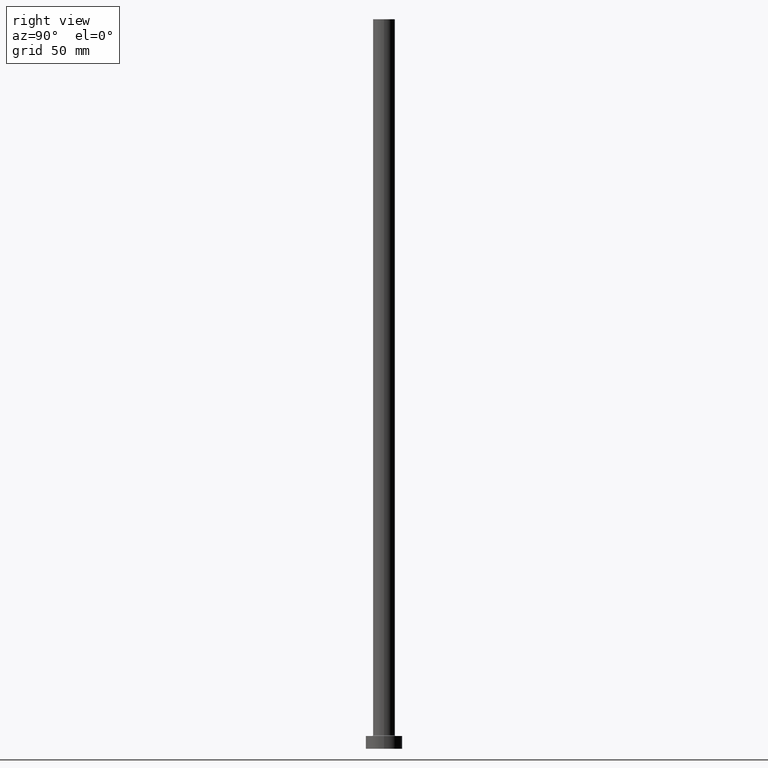
[diagram: clean part render]
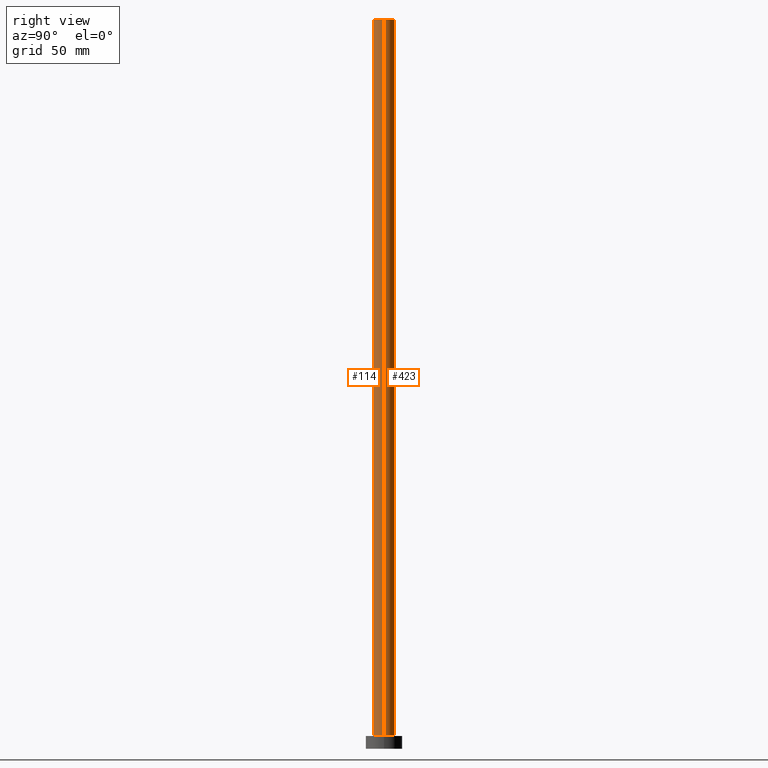
[diagram: same view with one multi-face feature highlighted, each face labeled with its STEP entity id]
A machine part, right view. The highlighted faces form ONE feature: a constant-radius fillet chain: 2 tangent blend faces with common blend radius 6 mm. The faces share edges in the B-rep.
Their STEP definitions:
[1] entity #423 (Cylinder):
#41 = DIRECTION ( 'NONE',  ( -0.000000000000000000, -0.000000000000000000, -1.000000000000000000 ) ) ;
#47 = CARTESIAN_POINT ( 'NONE',  ( 6.000000000000000888, 7.347880794884120722E-16, 400.0000000000000000 ) ) ;
#48 = CIRCLE ( 'NONE', #390, 6.000000000000000888 ) ;
#54 = DIRECTION ( 'NONE',  ( -0.000000000000000000, -0.000000000000000000, -1.000000000000000000 ) ) ;
#63 = EDGE_CURVE ( 'NONE', #443, #298, #238, .T. ) ;
#94 = ORIENTED_EDGE ( 'NONE', *, *, #202, .T. ) ;
#115 = DIRECTION ( 'NONE',  ( 0.000000000000000000, 0.000000000000000000, 1.000000000000000000 ) ) ;
#122 = CARTESIAN_POINT ( 'NONE',  ( -6.000000000000000888, 0.000000000000000000, 7.500000000000007105 ) ) ;
#150 = AXIS2_PLACEMENT_3D ( 'NONE', #262, #393, #256 ) ;
#157 = CARTESIAN_POINT ( 'NONE',  ( 6.000000000000000888, 7.347880794884120722E-16, 400.0000000000000000 ) ) ;
#169 = ORIENTED_EDGE ( 'NONE', *, *, #214, .F. ) ;
#190 = VECTOR ( 'NONE', #41, 1000.000000000000000 ) ;
#197 = VECTOR ( 'NONE', #54, 1000.000000000000000 ) ;
#202 = EDGE_CURVE ( 'NONE', #298, #379, #418, .T. ) ;
#214 = EDGE_CURVE ( 'NONE', #443, #413, #48, .T. ) ;
#222 = DIRECTION ( 'NONE',  ( 1.000000000000000000, 0.000000000000000000, 0.000000000000000000 ) ) ;
#230 = EDGE_CURVE ( 'NONE', #413, #379, #370, .T. ) ;
#238 = LINE ( 'NONE', #47, #197 ) ;
#256 = DIRECTION ( 'NONE',  ( 1.000000000000000000, 0.000000000000000000, 0.000000000000000000 ) ) ;
#262 = CARTESIAN_POINT ( 'NONE',  ( 0.000000000000000000, 0.000000000000000000, 7.500000000000007105 ) ) ;
#268 = DIRECTION ( 'NONE',  ( -0.000000000000000000, -0.000000000000000000, -1.000000000000000000 ) ) ;
#298 = VERTEX_POINT ( 'NONE', #441 ) ;
#300 = DIRECTION ( 'NONE',  ( -1.000000000000000000, 0.000000000000000000, 0.000000000000000000 ) ) ;
#305 = CARTESIAN_POINT ( 'NONE',  ( 0.000000000000000000, 0.000000000000000000, 400.0000000000000000 ) ) ;
#340 = ORIENTED_EDGE ( 'NONE', *, *, #63, .T. ) ;
#361 = CARTESIAN_POINT ( 'NONE',  ( -6.000000000000000888, 0.000000000000000000, 400.0000000000000000 ) ) ;
#370 = LINE ( 'NONE', #361, #190 ) ;
#379 = VERTEX_POINT ( 'NONE', #122 ) ;
#390 = AXIS2_PLACEMENT_3D ( 'NONE', #432, #115, #222 ) ;
#393 = DIRECTION ( 'NONE',  ( 0.000000000000000000, 0.000000000000000000, 1.000000000000000000 ) ) ;
#394 = ORIENTED_EDGE ( 'NONE', *, *, #230, .F. ) ;
#411 = EDGE_LOOP ( 'NONE', ( #169, #340, #94, #394 ) ) ;
#412 = CARTESIAN_POINT ( 'NONE',  ( -6.000000000000000888, 0.000000000000000000, 400.0000000000000000 ) ) ;
#413 = VERTEX_POINT ( 'NONE', #412 ) ;
#418 = CIRCLE ( 'NONE', #150, 6.000000000000000888 ) ;
#423 = ADVANCED_FACE ( 'NONE', ( #446 ), #444, .T. ) ;
#432 = CARTESIAN_POINT ( 'NONE',  ( 0.000000000000000000, 0.000000000000000000, 400.0000000000000000 ) ) ;
#441 = CARTESIAN_POINT ( 'NONE',  ( 6.000000000000000888, 7.347880794884120722E-16, 7.500000000000007105 ) ) ;
#443 = VERTEX_POINT ( 'NONE', #157 ) ;
#444 = CYLINDRICAL_SURFACE ( 'NONE', #458, 6.000000000000000888 ) ;
#446 = FACE_OUTER_BOUND ( 'NONE', #411, .T. ) ;
#458 = AXIS2_PLACEMENT_3D ( 'NONE', #305, #268, #300 ) ;
[2] entity #114 (Cylinder):
#1 = DIRECTION ( 'NONE',  ( 0.000000000000000000, 0.000000000000000000, 1.000000000000000000 ) ) ;
#2 = DIRECTION ( 'NONE',  ( -0.000000000000000000, -0.000000000000000000, -1.000000000000000000 ) ) ;
#22 = CYLINDRICAL_SURFACE ( 'NONE', #284, 6.000000000000000888 ) ;
#35 = ORIENTED_EDGE ( 'NONE', *, *, #153, .F. ) ;
#41 = DIRECTION ( 'NONE',  ( -0.000000000000000000, -0.000000000000000000, -1.000000000000000000 ) ) ;
#47 = CARTESIAN_POINT ( 'NONE',  ( 6.000000000000000888, 7.347880794884120722E-16, 400.0000000000000000 ) ) ;
#54 = DIRECTION ( 'NONE',  ( -0.000000000000000000, -0.000000000000000000, -1.000000000000000000 ) ) ;
#55 = ORIENTED_EDGE ( 'NONE', *, *, #63, .F. ) ;
#63 = EDGE_CURVE ( 'NONE', #443, #298, #238, .T. ) ;
#111 = DIRECTION ( 'NONE',  ( 1.000000000000000000, 0.000000000000000000, 0.000000000000000000 ) ) ;
#114 = ADVANCED_FACE ( 'NONE', ( #165 ), #22, .T. ) ;
#116 = CARTESIAN_POINT ( 'NONE',  ( 0.000000000000000000, 0.000000000000000000, 7.500000000000007105 ) ) ;
#122 = CARTESIAN_POINT ( 'NONE',  ( -6.000000000000000888, 0.000000000000000000, 7.500000000000007105 ) ) ;
#125 = AXIS2_PLACEMENT_3D ( 'NONE', #116, #367, #399 ) ;
#153 = EDGE_CURVE ( 'NONE', #413, #443, #219, .T. ) ;
#157 = CARTESIAN_POINT ( 'NONE',  ( 6.000000000000000888, 7.347880794884120722E-16, 400.0000000000000000 ) ) ;
#165 = FACE_OUTER_BOUND ( 'NONE', #453, .T. ) ;
#178 = AXIS2_PLACEMENT_3D ( 'NONE', #426, #1, #111 ) ;
#190 = VECTOR ( 'NONE', #41, 1000.000000000000000 ) ;
#197 = VECTOR ( 'NONE', #54, 1000.000000000000000 ) ;
#203 = CARTESIAN_POINT ( 'NONE',  ( 0.000000000000000000, 0.000000000000000000, 400.0000000000000000 ) ) ;
#208 = EDGE_CURVE ( 'NONE', #379, #298, #273, .T. ) ;
#219 = CIRCLE ( 'NONE', #178, 6.000000000000000888 ) ;
#230 = EDGE_CURVE ( 'NONE', #413, #379, #370, .T. ) ;
#238 = LINE ( 'NONE', #47, #197 ) ;
#257 = DIRECTION ( 'NONE',  ( -1.000000000000000000, 0.000000000000000000, 0.000000000000000000 ) ) ;
#273 = CIRCLE ( 'NONE', #125, 6.000000000000000888 ) ;
#284 = AXIS2_PLACEMENT_3D ( 'NONE', #203, #2, #257 ) ;
#288 = ORIENTED_EDGE ( 'NONE', *, *, #208, .T. ) ;
#298 = VERTEX_POINT ( 'NONE', #441 ) ;
#304 = ORIENTED_EDGE ( 'NONE', *, *, #230, .T. ) ;
#361 = CARTESIAN_POINT ( 'NONE',  ( -6.000000000000000888, 0.000000000000000000, 400.0000000000000000 ) ) ;
#367 = DIRECTION ( 'NONE',  ( 0.000000000000000000, 0.000000000000000000, 1.000000000000000000 ) ) ;
#370 = LINE ( 'NONE', #361, #190 ) ;
#379 = VERTEX_POINT ( 'NONE', #122 ) ;
#399 = DIRECTION ( 'NONE',  ( 1.000000000000000000, 0.000000000000000000, 0.000000000000000000 ) ) ;
#412 = CARTESIAN_POINT ( 'NONE',  ( -6.000000000000000888, 0.000000000000000000, 400.0000000000000000 ) ) ;
#413 = VERTEX_POINT ( 'NONE', #412 ) ;
#426 = CARTESIAN_POINT ( 'NONE',  ( 0.000000000000000000, 0.000000000000000000, 400.0000000000000000 ) ) ;
#441 = CARTESIAN_POINT ( 'NONE',  ( 6.000000000000000888, 7.347880794884120722E-16, 7.500000000000007105 ) ) ;
#443 = VERTEX_POINT ( 'NONE', #157 ) ;
#453 = EDGE_LOOP ( 'NONE', ( #55, #35, #304, #288 ) ) ;